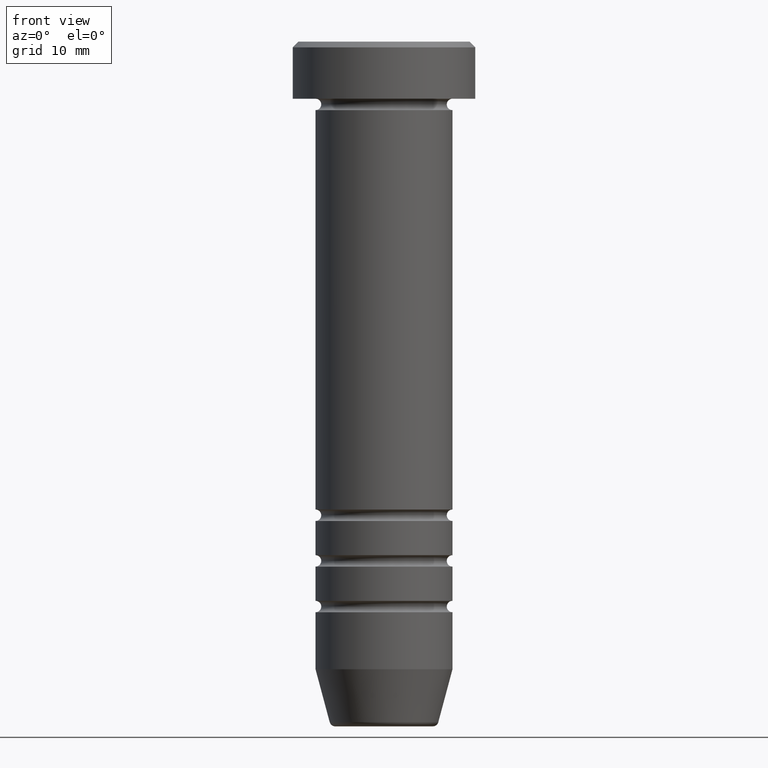
[diagram: clean part render]
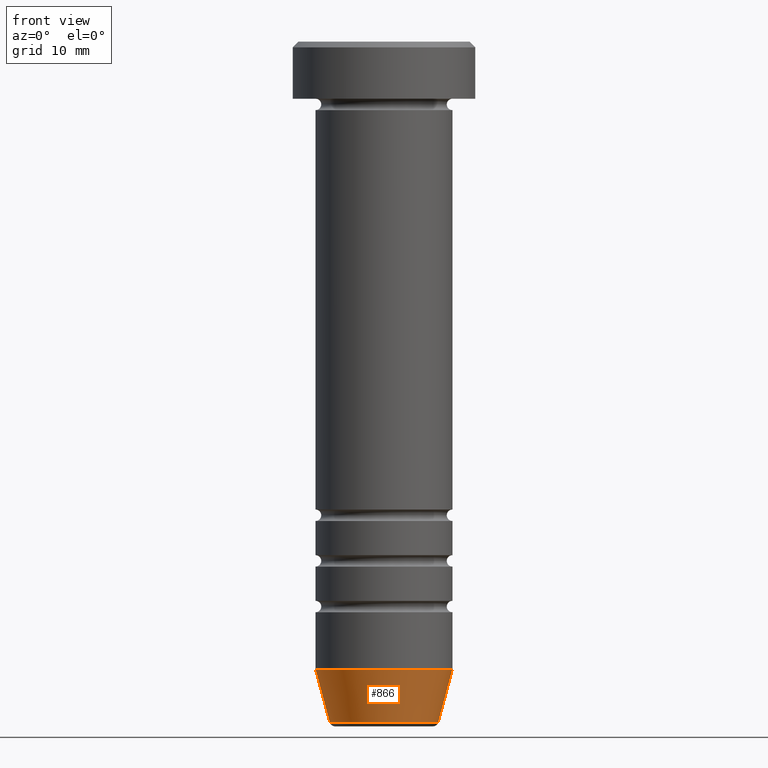
[diagram: same view with one face highlighted and labeled with its STEP entity id]
A machine part, front view. The second image highlights one B-rep face of the part: STEP entity #866.
In plain terms, the highlighted conical surface has half-angle 15 deg.
Its self-contained STEP definition (entity closure, byte-faithful):
#18 = FACE_OUTER_BOUND ( 'NONE', #570, .T. ) ;
#22 = CARTESIAN_POINT ( 'NONE',  ( 0.000000000000000000, 0.000000000000000000, -60.00000000000000000 ) ) ;
#30 = AXIS2_PLACEMENT_3D ( 'NONE', #897, #398, #178 ) ;
#168 = AXIS2_PLACEMENT_3D ( 'NONE', #350, #507, #272 ) ;
#178 = DIRECTION ( 'NONE',  ( -1.000000000000000000, 0.000000000000000000, 0.000000000000000000 ) ) ;
#185 = VERTEX_POINT ( 'NONE', #338 ) ;
#202 = CARTESIAN_POINT ( 'NONE',  ( 4.759553456999439547, 0.000000000000000000, -59.62940952255125637 ) ) ;
#230 = CARTESIAN_POINT ( 'NONE',  ( 6.000000000000000000, 0.000000000000000000, -54.99999999999999289 ) ) ;
#233 = EDGE_CURVE ( 'NONE', #682, #185, #824, .T. ) ;
#258 = LINE ( 'NONE', #587, #571 ) ;
#264 = CIRCLE ( 'NONE', #168, 6.000000000000000000 ) ;
#272 = DIRECTION ( 'NONE',  ( 1.000000000000000000, 0.000000000000000000, 0.000000000000000000 ) ) ;
#284 = DIRECTION ( 'NONE',  ( 1.000000000000000000, 0.000000000000000000, 0.000000000000000000 ) ) ;
#296 = EDGE_CURVE ( 'NONE', #185, #715, #264, .T. ) ;
#321 = DIRECTION ( 'NONE',  ( -0.2588190451025211836, 3.169619151431770488E-17, 0.9659258262890680902 ) ) ;
#338 = CARTESIAN_POINT ( 'NONE',  ( -6.000000000000000000, 7.347880794884119736E-16, -54.99999999999999289 ) ) ;
#349 = ORIENTED_EDGE ( 'NONE', *, *, #488, .T. ) ;
#350 = CARTESIAN_POINT ( 'NONE',  ( 0.000000000000000000, 0.000000000000000000, -54.99999999999999289 ) ) ;
#352 = ORIENTED_EDGE ( 'NONE', *, *, #233, .F. ) ;
#398 = DIRECTION ( 'NONE',  ( -0.000000000000000000, -0.000000000000000000, 1.000000000000000000 ) ) ;
#410 = CIRCLE ( 'NONE', #30, 4.759553456999439547 ) ;
#413 = CARTESIAN_POINT ( 'NONE',  ( -4.660254037844382857, 5.707165190659651882E-16, -60.00000000000000000 ) ) ;
#440 = AXIS2_PLACEMENT_3D ( 'NONE', #22, #503, #284 ) ;
#488 = EDGE_CURVE ( 'NONE', #673, #715, #258, .T. ) ;
#503 = DIRECTION ( 'NONE',  ( -0.000000000000000000, -0.000000000000000000, 1.000000000000000000 ) ) ;
#507 = DIRECTION ( 'NONE',  ( -0.000000000000000000, -0.000000000000000000, 1.000000000000000000 ) ) ;
#570 = EDGE_LOOP ( 'NONE', ( #352, #922, #349, #1040 ) ) ;
#571 = VECTOR ( 'NONE', #909, 1000.000000000000114 ) ;
#572 = EDGE_CURVE ( 'NONE', #682, #673, #410, .T. ) ;
#587 = CARTESIAN_POINT ( 'NONE',  ( 4.660254037844382857, 0.000000000000000000, -60.00000000000000000 ) ) ;
#673 = VERTEX_POINT ( 'NONE', #202 ) ;
#682 = VERTEX_POINT ( 'NONE', #935 ) ;
#715 = VERTEX_POINT ( 'NONE', #230 ) ;
#824 = LINE ( 'NONE', #413, #1028 ) ;
#852 = CONICAL_SURFACE ( 'NONE', #440, 4.660254037844382857, 0.2617993877991499074 ) ;
#866 = ADVANCED_FACE ( 'NONE', ( #18 ), #852, .T. ) ;
#897 = CARTESIAN_POINT ( 'NONE',  ( 0.000000000000000000, 0.000000000000000000, -59.62940952255125637 ) ) ;
#909 = DIRECTION ( 'NONE',  ( 0.2588190451025211836, 0.000000000000000000, 0.9659258262890680902 ) ) ;
#922 = ORIENTED_EDGE ( 'NONE', *, *, #572, .T. ) ;
#935 = CARTESIAN_POINT ( 'NONE',  ( -4.759553456999439547, 6.588326350684602264E-16, -59.62940952255125637 ) ) ;
#1028 = VECTOR ( 'NONE', #321, 1000.000000000000114 ) ;
#1040 = ORIENTED_EDGE ( 'NONE', *, *, #296, .F. ) ;